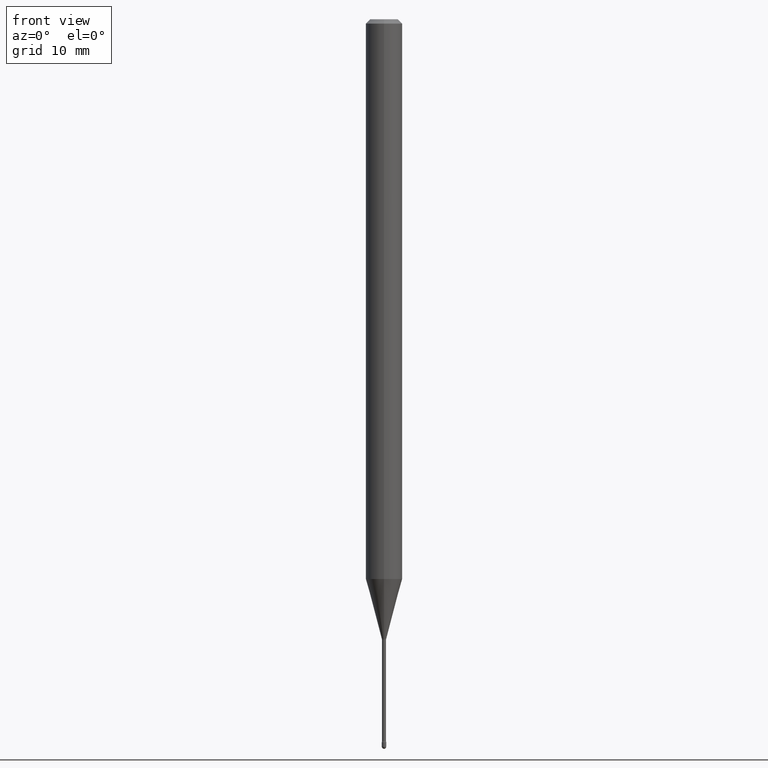
[diagram: clean part render]
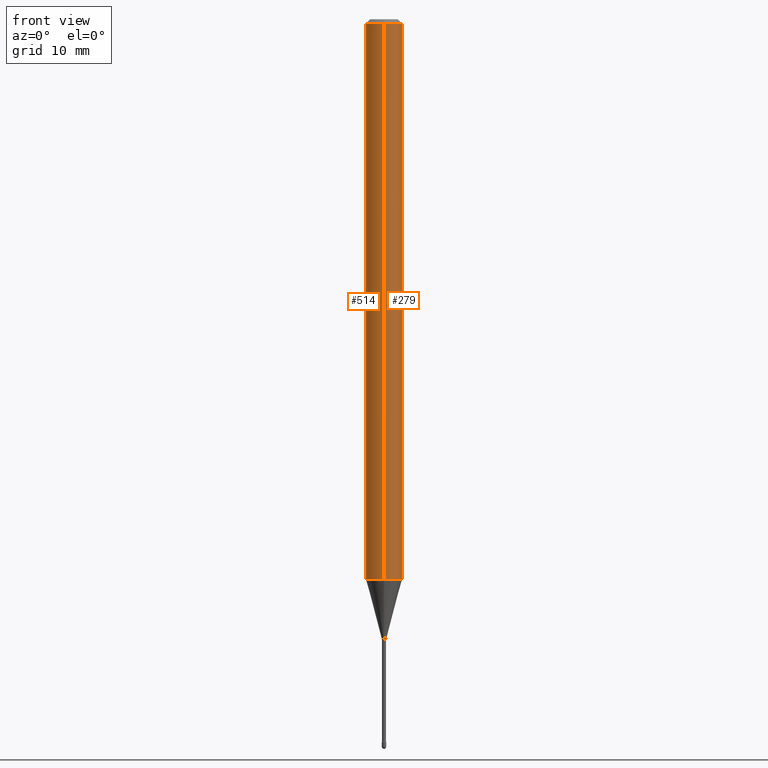
[diagram: same view with one multi-face feature highlighted, each face labeled with its STEP entity id]
A machine part, front view. The highlighted faces form ONE feature: a constant-radius fillet chain: 2 tangent blend faces with common blend radius 1.5875 mm. The faces share edges in the B-rep.
Their STEP definitions:
[1] entity #514 (Cylinder):
#23 = EDGE_CURVE ( 'NONE', #381, #342, #316, .T. ) ;
#39 = ORIENTED_EDGE ( 'NONE', *, *, #308, .T. ) ;
#43 = FACE_OUTER_BOUND ( 'NONE', #349, .T. ) ;
#55 = CARTESIAN_POINT ( 'NONE',  ( 3.668211632548473147E-31, -5.237209945661613369E-17, -0.01500000000000008271 ) ) ;
#86 = CARTESIAN_POINT ( 'NONE',  ( 4.690561246983147435E-29, -6.696847530677596410E-15, -1.918057782720306470 ) ) ;
#104 = CARTESIAN_POINT ( 'NONE',  ( 4.440892098501092576E-16, 0.06249999999999329009, -1.918057782720306692 ) ) ;
#148 = CARTESIAN_POINT ( 'NONE',  ( -4.364351673553916201E-16, -0.06250000000000000000, 6.962904799604786922E-16 ) ) ;
#161 = AXIS2_PLACEMENT_3D ( 'NONE', #328, #508, #425 ) ;
#166 = VECTOR ( 'NONE', #181, 39.37007874015748143 ) ;
#181 = DIRECTION ( 'NONE',  ( -2.445474421698968540E-29, 3.491473297107723247E-15, 1.000000000000000000 ) ) ;
#182 = EDGE_CURVE ( 'NONE', #397, #476, #529, .T. ) ;
#212 = ORIENTED_EDGE ( 'NONE', *, *, #23, .F. ) ;
#241 = CARTESIAN_POINT ( 'NONE',  ( -4.364351673553912750E-16, -0.06250000000000005551, -0.01499999999999986587 ) ) ;
#248 = CARTESIAN_POINT ( 'NONE',  ( -4.364351673553447322E-16, -0.06250000000000668909, -1.918057782720306248 ) ) ;
#249 = CYLINDRICAL_SURFACE ( 'NONE', #161, 0.06250000000000000000 ) ;
#257 = LINE ( 'NONE', #148, #551 ) ;
#272 = CARTESIAN_POINT ( 'NONE',  ( 4.440892098501097506E-16, 0.06249999999999995143, -0.01500000000000030129 ) ) ;
#288 = EDGE_CURVE ( 'NONE', #397, #381, #407, .T. ) ;
#308 = EDGE_CURVE ( 'NONE', #476, #342, #257, .T. ) ;
#316 = CIRCLE ( 'NONE', #544, 0.06250000000000000000 ) ;
#328 = CARTESIAN_POINT ( 'NONE',  ( -1.169113584055446105E-44, 1.669184350826100908E-30, 4.780733988912460139E-16 ) ) ;
#335 = ORIENTED_EDGE ( 'NONE', *, *, #288, .F. ) ;
#342 = VERTEX_POINT ( 'NONE', #241 ) ;
#343 = ORIENTED_EDGE ( 'NONE', *, *, #182, .T. ) ;
#349 = EDGE_LOOP ( 'NONE', ( #335, #343, #39, #212 ) ) ;
#381 = VERTEX_POINT ( 'NONE', #272 ) ;
#394 = DIRECTION ( 'NONE',  ( -2.445474421698968540E-29, 3.491473297107723247E-15, 1.000000000000000000 ) ) ;
#397 = VERTEX_POINT ( 'NONE', #104 ) ;
#407 = LINE ( 'NONE', #487, #166 ) ;
#422 = DIRECTION ( 'NONE',  ( -2.445474421698968540E-29, 3.491473297107723247E-15, 1.000000000000000000 ) ) ;
#425 = DIRECTION ( 'NONE',  ( -6.982962677686265922E-15, -1.000000000000000000, 3.491473297107722064E-15 ) ) ;
#460 = DIRECTION ( 'NONE',  ( -6.982962677686265922E-15, -1.000000000000000000, 3.483106191921935554E-15 ) ) ;
#476 = VERTEX_POINT ( 'NONE', #248 ) ;
#486 = DIRECTION ( 'NONE',  ( -6.982962677686265922E-15, -1.000000000000000000, 4.370956789862821150E-15 ) ) ;
#487 = CARTESIAN_POINT ( 'NONE',  ( 4.440892098500625669E-16, 0.06250000000000000000, 2.598563178220133849E-16 ) ) ;
#494 = DIRECTION ( 'NONE',  ( -2.445474421698968540E-29, 3.491473297107723247E-15, 1.000000000000000000 ) ) ;
#508 = DIRECTION ( 'NONE',  ( -2.445474421698968540E-29, 3.491473297107723247E-15, 1.000000000000000000 ) ) ;
#510 = AXIS2_PLACEMENT_3D ( 'NONE', #86, #394, #486 ) ;
#514 = ADVANCED_FACE ( 'NONE', ( #43 ), #249, .T. ) ;
#529 = CIRCLE ( 'NONE', #510, 0.06250000000000000000 ) ;
#544 = AXIS2_PLACEMENT_3D ( 'NONE', #55, #494, #460 ) ;
#551 = VECTOR ( 'NONE', #422, 39.37007874015748143 ) ;
[2] entity #279 (Cylinder):
#32 = DIRECTION ( 'NONE',  ( -2.445474421698968540E-29, 3.491473297107723247E-15, 1.000000000000000000 ) ) ;
#40 = CIRCLE ( 'NONE', #324, 0.06250000000000000000 ) ;
#104 = CARTESIAN_POINT ( 'NONE',  ( 4.440892098501092576E-16, 0.06249999999999329009, -1.918057782720306692 ) ) ;
#134 = DIRECTION ( 'NONE',  ( -6.982962677686265922E-15, -1.000000000000000000, 3.491473297107722064E-15 ) ) ;
#142 = DIRECTION ( 'NONE',  ( -2.445474421698968540E-29, 3.491473297107723247E-15, 1.000000000000000000 ) ) ;
#148 = CARTESIAN_POINT ( 'NONE',  ( -4.364351673553916201E-16, -0.06250000000000000000, 6.962904799604786922E-16 ) ) ;
#152 = CIRCLE ( 'NONE', #307, 0.06250000000000000000 ) ;
#166 = VECTOR ( 'NONE', #181, 39.37007874015748143 ) ;
#181 = DIRECTION ( 'NONE',  ( -2.445474421698968540E-29, 3.491473297107723247E-15, 1.000000000000000000 ) ) ;
#210 = EDGE_CURVE ( 'NONE', #342, #381, #40, .T. ) ;
#213 = DIRECTION ( 'NONE',  ( -6.982962677686265922E-15, -1.000000000000000000, 3.483106191921935554E-15 ) ) ;
#241 = CARTESIAN_POINT ( 'NONE',  ( -4.364351673553912750E-16, -0.06250000000000005551, -0.01499999999999986587 ) ) ;
#248 = CARTESIAN_POINT ( 'NONE',  ( -4.364351673553447322E-16, -0.06250000000000668909, -1.918057782720306248 ) ) ;
#257 = LINE ( 'NONE', #148, #551 ) ;
#272 = CARTESIAN_POINT ( 'NONE',  ( 4.440892098501097506E-16, 0.06249999999999995143, -0.01500000000000030129 ) ) ;
#279 = ADVANCED_FACE ( 'NONE', ( #446 ), #557, .T. ) ;
#288 = EDGE_CURVE ( 'NONE', #397, #381, #407, .T. ) ;
#289 = CARTESIAN_POINT ( 'NONE',  ( 3.668211632548473147E-31, -5.237209945661613369E-17, -0.01500000000000008271 ) ) ;
#297 = AXIS2_PLACEMENT_3D ( 'NONE', #495, #142, #134 ) ;
#302 = EDGE_LOOP ( 'NONE', ( #390, #434, #549, #436 ) ) ;
#307 = AXIS2_PLACEMENT_3D ( 'NONE', #410, #413, #498 ) ;
#308 = EDGE_CURVE ( 'NONE', #476, #342, #257, .T. ) ;
#324 = AXIS2_PLACEMENT_3D ( 'NONE', #289, #32, #213 ) ;
#342 = VERTEX_POINT ( 'NONE', #241 ) ;
#381 = VERTEX_POINT ( 'NONE', #272 ) ;
#390 = ORIENTED_EDGE ( 'NONE', *, *, #396, .T. ) ;
#396 = EDGE_CURVE ( 'NONE', #476, #397, #152, .T. ) ;
#397 = VERTEX_POINT ( 'NONE', #104 ) ;
#407 = LINE ( 'NONE', #487, #166 ) ;
#410 = CARTESIAN_POINT ( 'NONE',  ( 4.690561246983147435E-29, -6.696847530677596410E-15, -1.918057782720306470 ) ) ;
#413 = DIRECTION ( 'NONE',  ( -2.445474421698968540E-29, 3.491473297107723247E-15, 1.000000000000000000 ) ) ;
#422 = DIRECTION ( 'NONE',  ( -2.445474421698968540E-29, 3.491473297107723247E-15, 1.000000000000000000 ) ) ;
#434 = ORIENTED_EDGE ( 'NONE', *, *, #288, .T. ) ;
#436 = ORIENTED_EDGE ( 'NONE', *, *, #308, .F. ) ;
#446 = FACE_OUTER_BOUND ( 'NONE', #302, .T. ) ;
#476 = VERTEX_POINT ( 'NONE', #248 ) ;
#487 = CARTESIAN_POINT ( 'NONE',  ( 4.440892098500625669E-16, 0.06250000000000000000, 2.598563178220133849E-16 ) ) ;
#495 = CARTESIAN_POINT ( 'NONE',  ( -1.169113584055446105E-44, 1.669184350826100908E-30, 4.780733988912460139E-16 ) ) ;
#498 = DIRECTION ( 'NONE',  ( -6.982962677686265922E-15, -1.000000000000000000, 4.370956789862821150E-15 ) ) ;
#549 = ORIENTED_EDGE ( 'NONE', *, *, #210, .F. ) ;
#551 = VECTOR ( 'NONE', #422, 39.37007874015748143 ) ;
#557 = CYLINDRICAL_SURFACE ( 'NONE', #297, 0.06250000000000000000 ) ;